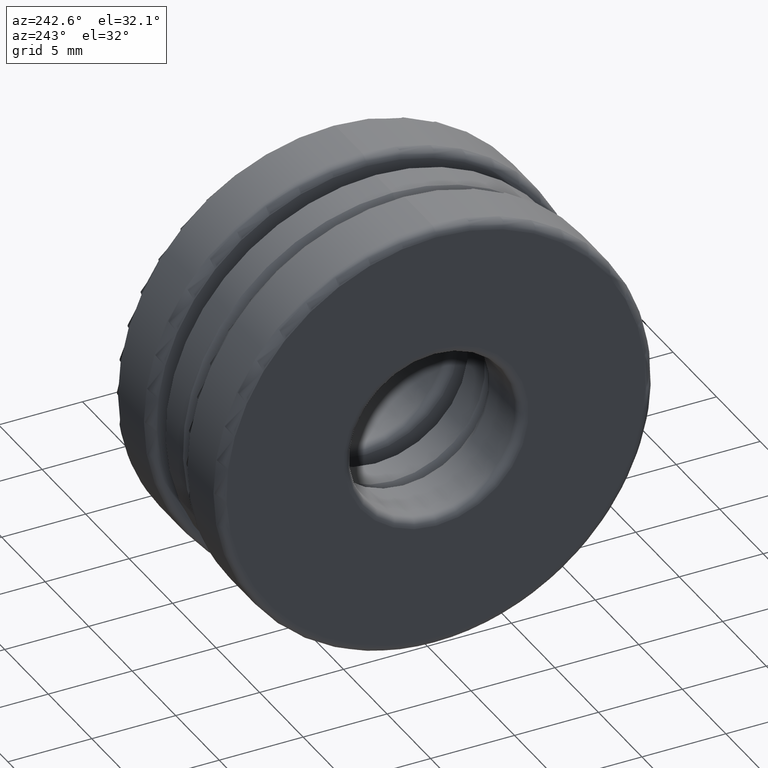
[diagram: clean part render]
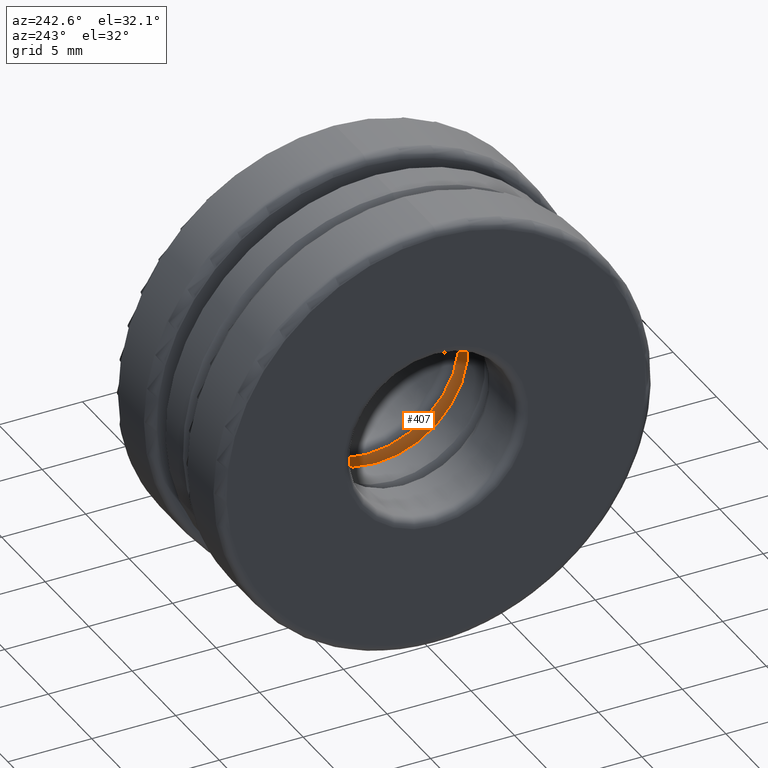
[diagram: same view with one face highlighted and labeled with its STEP entity id]
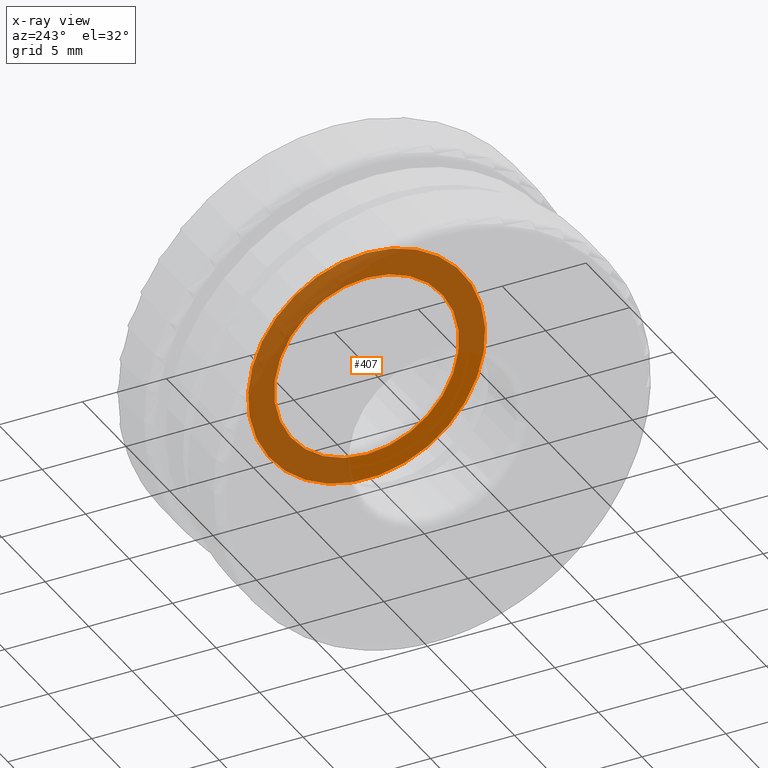
[diagram: x-ray of the same camera — body ghosted, the highlighted face saturated]
A machine part, auxiliary view. The second image highlights one B-rep face of the part: STEP entity #407.
The next image is the same camera in x-ray: the body ghosted, the highlighted face saturated — about 75% of this face is hidden behind the body in this view.
In plain terms, the highlighted planar face has unit normal (1, 0, 0).
Its self-contained STEP definition (entity closure, byte-faithful):
#45 = DIRECTION ( 'NONE',  ( 0.0000000000000000000, 0.0000000000000000000, 1.000000000000000000 ) ) ;
#92 = CARTESIAN_POINT ( 'NONE',  ( 0.07866824000000018100, 0.0000000000000000000, 0.2169999999999998900 ) ) ;
#120 = EDGE_LOOP ( 'NONE', ( #511 ) ) ;
#184 = PLANE ( 'NONE',  #267 ) ;
#208 = EDGE_CURVE ( 'NONE', #513, #513, #276, .T. ) ;
#255 = CARTESIAN_POINT ( 'NONE',  ( 0.07866824000000018100, 0.0000000000000000000, 0.0000000000000000000 ) ) ;
#267 = AXIS2_PLACEMENT_3D ( 'NONE', #443, #432, #498 ) ;
#276 = CIRCLE ( 'NONE', #653, 0.2169999999999998900 ) ;
#367 = CARTESIAN_POINT ( 'NONE',  ( 0.07866824000000018100, 0.0000000000000000000, 0.0000000000000000000 ) ) ;
#407 = ADVANCED_FACE ( 'NONE', ( #571, #483 ), #184, .F. ) ;
#410 = EDGE_CURVE ( 'NONE', #414, #414, #746, .T. ) ;
#414 = VERTEX_POINT ( 'NONE', #611 ) ;
#428 = ORIENTED_EDGE ( 'NONE', *, *, #410, .T. ) ;
#432 = DIRECTION ( 'NONE',  ( 1.000000000000000000, 0.0000000000000000000, 0.0000000000000000000 ) ) ;
#443 = CARTESIAN_POINT ( 'NONE',  ( 0.07866824000000018100, 0.0000000000000000000, 0.0000000000000000000 ) ) ;
#483 = FACE_OUTER_BOUND ( 'NONE', #729, .T. ) ;
#489 = AXIS2_PLACEMENT_3D ( 'NONE', #255, #703, #710 ) ;
#493 = DIRECTION ( 'NONE',  ( -1.000000000000000000, -0.0000000000000000000, -0.0000000000000000000 ) ) ;
#498 = DIRECTION ( 'NONE',  ( 0.0000000000000000000, 0.0000000000000000000, -1.000000000000000000 ) ) ;
#511 = ORIENTED_EDGE ( 'NONE', *, *, #208, .F. ) ;
#513 = VERTEX_POINT ( 'NONE', #92 ) ;
#571 = FACE_BOUND ( 'NONE', #120, .T. ) ;
#611 = CARTESIAN_POINT ( 'NONE',  ( 0.07866824000000018100, 0.0000000000000000000, 0.2783320407566124400 ) ) ;
#653 = AXIS2_PLACEMENT_3D ( 'NONE', #367, #493, #45 ) ;
#703 = DIRECTION ( 'NONE',  ( -1.000000000000000000, -0.0000000000000000000, -0.0000000000000000000 ) ) ;
#710 = DIRECTION ( 'NONE',  ( 0.0000000000000000000, 0.0000000000000000000, 1.000000000000000000 ) ) ;
#729 = EDGE_LOOP ( 'NONE', ( #428 ) ) ;
#746 = CIRCLE ( 'NONE', #489, 0.2783320407566124400 ) ;